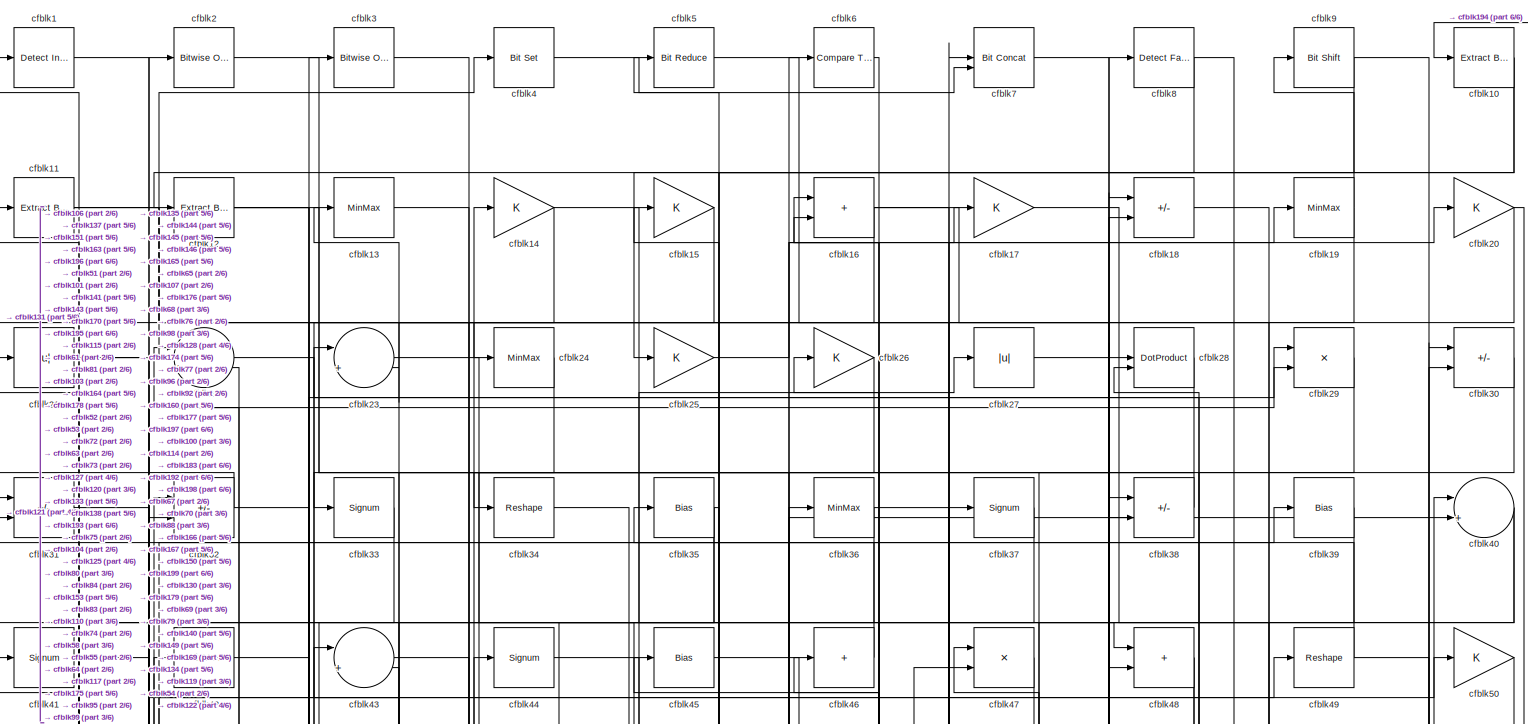
[diagram: root canvas - part 1/6, full width, top band]
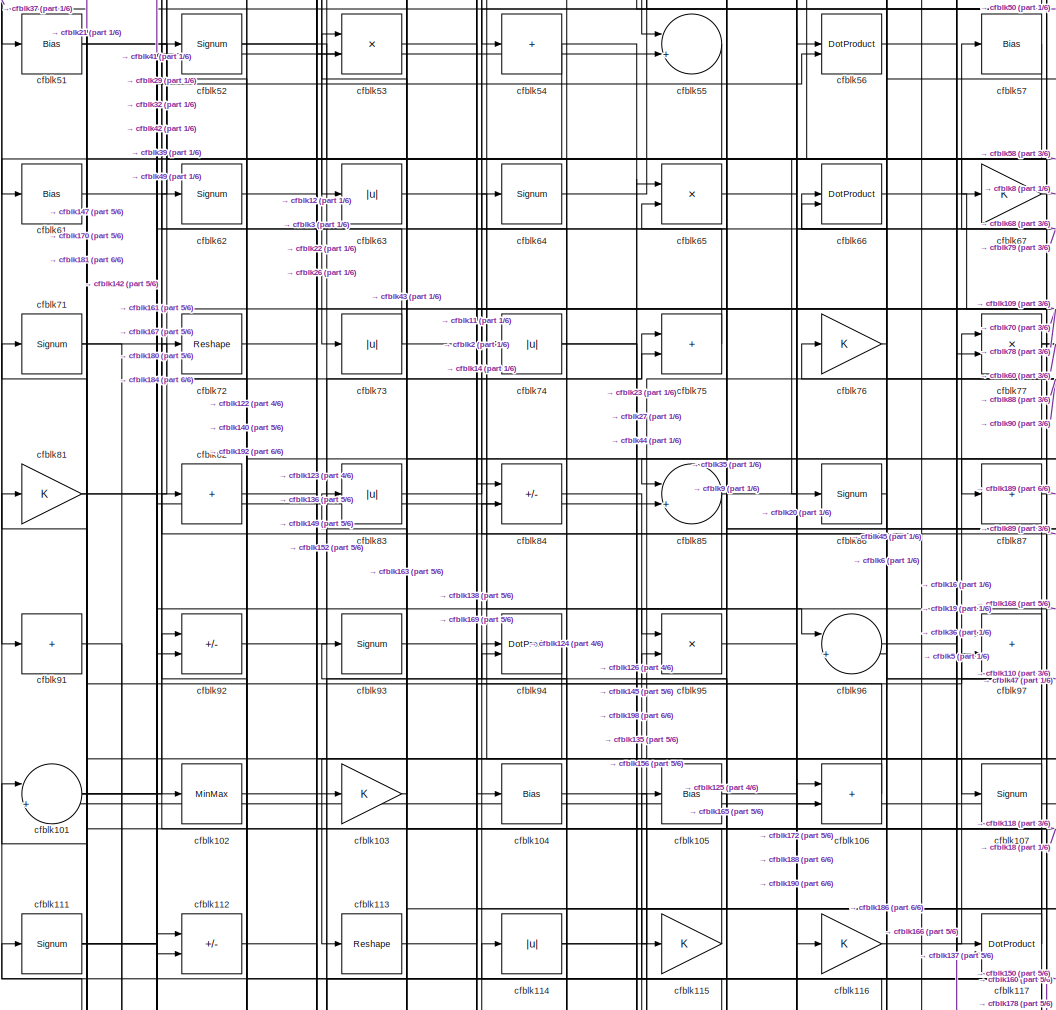
[diagram: root canvas - part 2/6, central region]
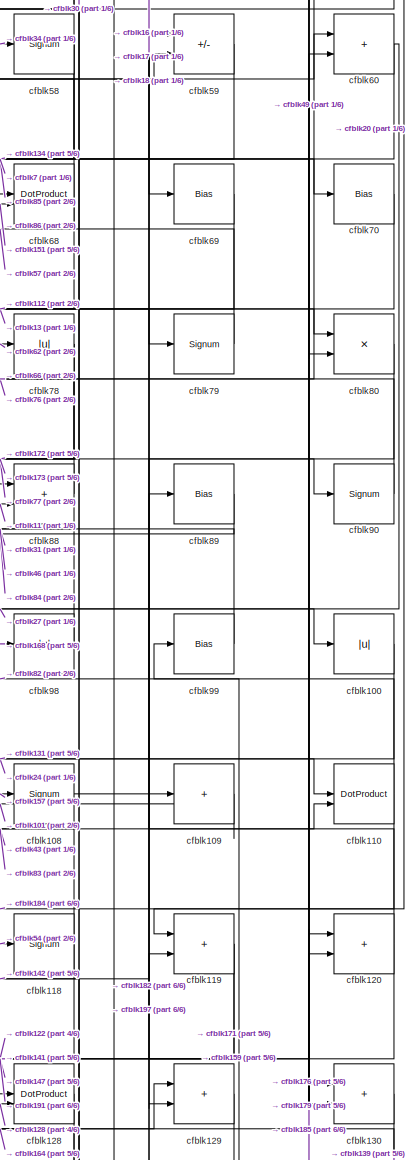
[diagram: root canvas - part 3/6, middle right region]
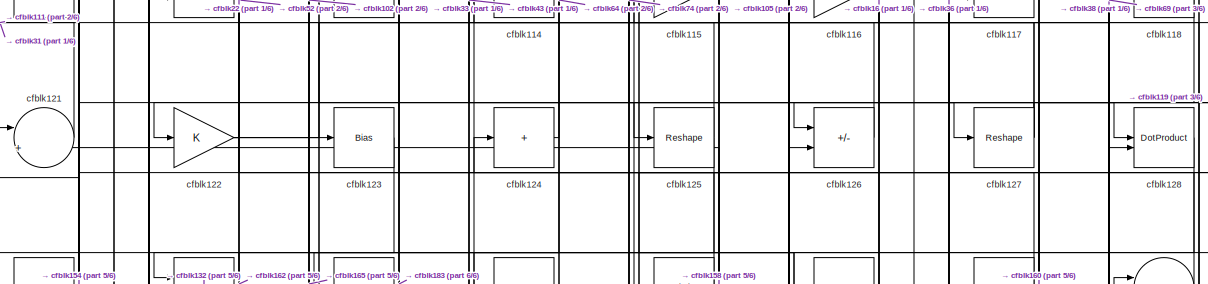
[diagram: root canvas - part 4/6, full width, middle band]
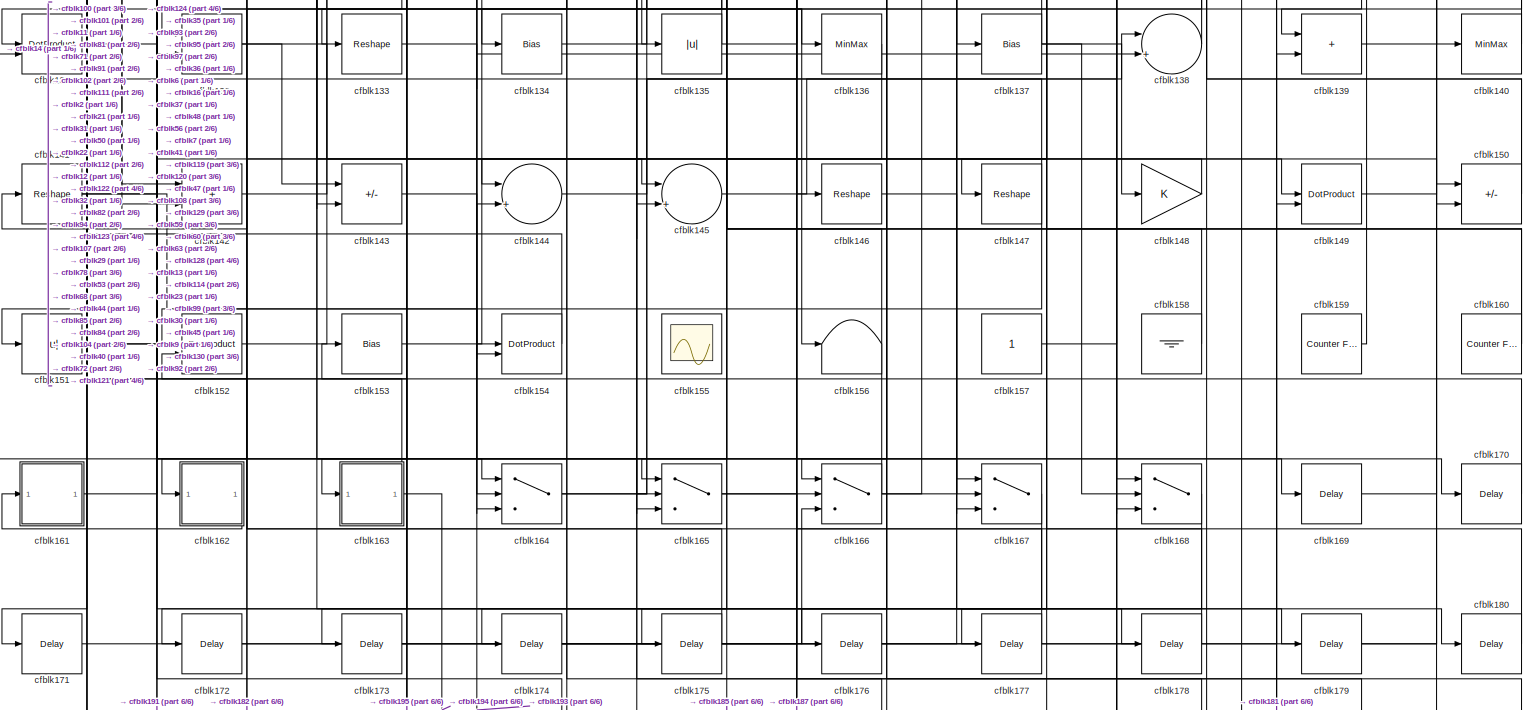
[diagram: root canvas - part 5/6, full width, bottom band]
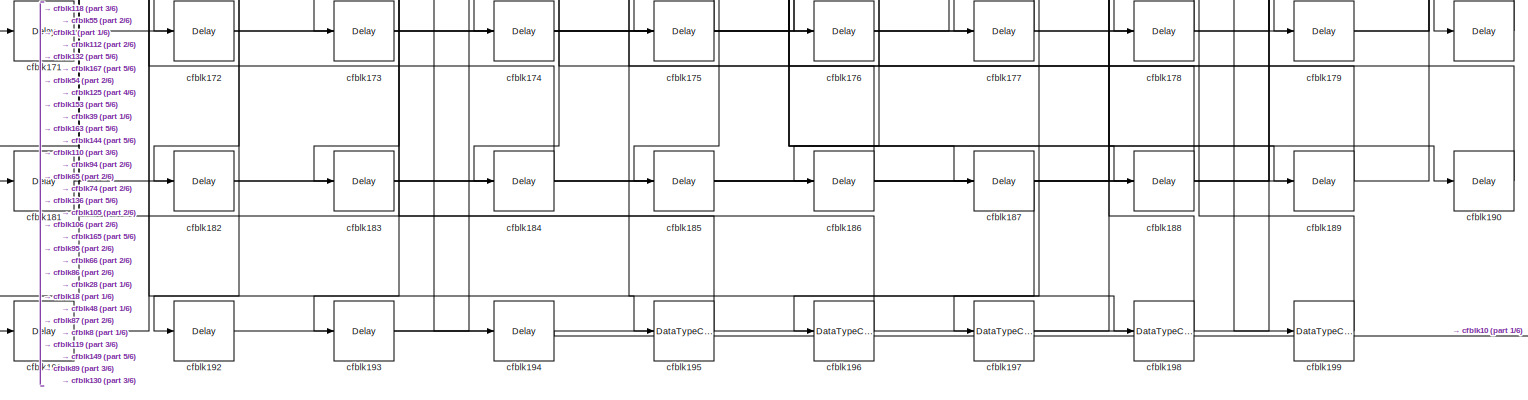
[diagram: root canvas - part 6/6, full width, bottom band]
MODEL slx_583c349c6bb7
KIND model
CONFIG AbsTol = auto
CONFIG EnableMultiTasking = off
CONFIG FixedStep = auto
CONFIG MaxStep = auto
CONFIG MinStep = auto
CONFIG RelTol = 1e-3
CONFIG SampleTimeConstraint = Unconstrained
CONFIG SolverName = VariableStepAuto
CONFIG StartTime = 0.0
CONFIG StopTime = 10.0
BLOCK [Reference] cfblk1  REF=simulink/Logic and Bit
Operations/Detect
Increase
  LibrarySourceBlock = hdlsllib/Logic and Bit\nOperations/Detect\nIncrease
  SourceBlock = simulink/Logic and Bit\nOperations/Detect\nIncrease
  SourceType = Detect Increase
BLOCK [Reference] cfblk10  REF=simulink/Logic and Bit
Operations/Extract Bits
  LibrarySourceBlock = hdlsllib/Logic and Bit\nOperations/Extract Bits
  SourceBlock = simulink/Logic and Bit\nOperations/Extract Bits
  SourceType = Extract Bits
BLOCK [Abs] cfblk100
  SaturateOnIntegerOverflow = off
BLOCK [Sum] cfblk101
  Inputs = |++
BLOCK [MinMax] cfblk102
BLOCK [Gain] cfblk103
BLOCK [Bias] cfblk104
  Bias = 0.0
  SaturateOnIntegerOverflow = off
BLOCK [Bias] cfblk105
  Bias = 0.0
  SaturateOnIntegerOverflow = off
BLOCK [Sum] cfblk106
  IconShape = rectangular
BLOCK [Signum] cfblk107
BLOCK [Signum] cfblk108
BLOCK [Sum] cfblk109
  IconShape = rectangular
  Inputs = +
BLOCK [Reference] cfblk11  REF=simulink/Logic and Bit
Operations/Extract Bits
  LibrarySourceBlock = hdlsllib/Logic and Bit\nOperations/Extract Bits
  SourceBlock = simulink/Logic and Bit\nOperations/Extract Bits
  SourceType = Extract Bits
BLOCK [DotProduct] cfblk110
  OutDataTypeStr = Inherit: Inherit via internal rule
BLOCK [Signum] cfblk111
BLOCK [Sum] cfblk112
  IconShape = rectangular
  Inputs = +-
BLOCK [Reshape] cfblk113
BLOCK [Abs] cfblk114
  SaturateOnIntegerOverflow = off
BLOCK [Gain] cfblk115
BLOCK [Gain] cfblk116
BLOCK [DotProduct] cfblk117
  OutDataTypeStr = Inherit: Inherit via internal rule
BLOCK [Signum] cfblk118
BLOCK [Sum] cfblk119
  IconShape = rectangular
BLOCK [Reference] cfblk12  REF=simulink/Logic and Bit
Operations/Extract Bits
  LibrarySourceBlock = hdlsllib/Logic and Bit\nOperations/Extract Bits
  SourceBlock = simulink/Logic and Bit\nOperations/Extract Bits
  SourceType = Extract Bits
BLOCK [Sum] cfblk120
  IconShape = rectangular
BLOCK [Sum] cfblk121
  Inputs = |++
BLOCK [Gain] cfblk122
BLOCK [Bias] cfblk123
  Bias = 0.0
  SaturateOnIntegerOverflow = off
BLOCK [Sum] cfblk124
  IconShape = rectangular
  Inputs = +
BLOCK [Reshape] cfblk125
BLOCK [Sum] cfblk126
  IconShape = rectangular
  Inputs = +-
BLOCK [Reshape] cfblk127
BLOCK [DotProduct] cfblk128
  OutDataTypeStr = Inherit: Inherit via internal rule
BLOCK [Sum] cfblk129
  IconShape = rectangular
BLOCK [MinMax] cfblk13
BLOCK [Sum] cfblk130
  IconShape = rectangular
BLOCK [DotProduct] cfblk131
  OutDataTypeStr = Inherit: Inherit via internal rule
BLOCK [Sum] cfblk132
  IconShape = rectangular
BLOCK [Reshape] cfblk133
BLOCK [Bias] cfblk134
  Bias = 0.0
  SaturateOnIntegerOverflow = off
BLOCK [Abs] cfblk135
  SaturateOnIntegerOverflow = off
BLOCK [MinMax] cfblk136
BLOCK [Bias] cfblk137
  Bias = 0.0
  SaturateOnIntegerOverflow = off
BLOCK [Sum] cfblk138
  Inputs = |++
BLOCK [Sum] cfblk139
  IconShape = rectangular
BLOCK [Gain] cfblk14
BLOCK [MinMax] cfblk140
BLOCK [Reshape] cfblk141
BLOCK [Sum] cfblk142
  IconShape = rectangular
BLOCK [Sum] cfblk143
  IconShape = rectangular
  Inputs = +-
BLOCK [Sum] cfblk144
  Inputs = |++
BLOCK [Sum] cfblk145
  Inputs = |++
BLOCK [Reshape] cfblk146
BLOCK [Reshape] cfblk147
BLOCK [Gain] cfblk148
BLOCK [DotProduct] cfblk149
  OutDataTypeStr = Inherit: Inherit via internal rule
BLOCK [Gain] cfblk15
BLOCK [Sum] cfblk150
  IconShape = rectangular
  Inputs = +-
BLOCK [Abs] cfblk151
  SaturateOnIntegerOverflow = off
BLOCK [DotProduct] cfblk152
  OutDataTypeStr = Inherit: Inherit via internal rule
BLOCK [Bias] cfblk153
  Bias = 0.0
  SaturateOnIntegerOverflow = off
BLOCK [DotProduct] cfblk154
  OutDataTypeStr = Inherit: Inherit via internal rule
BLOCK [Scope] cfblk155
  Floating = on
  NumInputPorts = 1
  ScopeSpecificationString = Simulink.scopes.TimeScopeBlockCfg('CurrentConfiguration', extmgr.ConfigurationSet(extmgr.Configuration('Core','General UI',true,'FigureColor',[0.156862745098039 0.156862745098039 0.156862745098039]),extmgr.Configuration('Core','Source UI',true),extmgr.Configuration('Sources','WiredSimulink',true,'DataLoggingVariableName','ScopeData1','DataLoggingSaveFormat','StructureWithTime','DataLoggingLimitDat...<+2713ch>
BLOCK [Terminator] cfblk156
BLOCK [Constant] cfblk157
  SampleTime = -1
BLOCK [Ground] cfblk158
BLOCK [Reference] cfblk159  REF=hdlsllib/Sources/Counter
Free-Running
  SourceBlock = hdlsllib/Sources/Counter\nFree-Running
  SourceType = Counter Free-Running
BLOCK [Sum] cfblk16
  IconShape = rectangular
BLOCK [Reference] cfblk160  REF=hdlsllib/Sources/Counter
Free-Running
  SourceBlock = hdlsllib/Sources/Counter\nFree-Running
  SourceType = Counter Free-Running
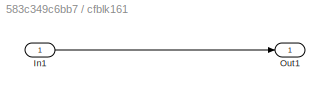
BLOCK [SubSystem] cfblk161
  LibrarySourceBlock = hdlsllib/Ports &\nSubsystems/Subsystem
BLOCK [Inport] cfblk161/In1
BLOCK [Outport] cfblk161/Out1
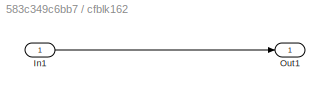
BLOCK [SubSystem] cfblk162
  LibrarySourceBlock = hdlsllib/Ports &\nSubsystems/Subsystem
BLOCK [Inport] cfblk162/In1
BLOCK [Outport] cfblk162/Out1
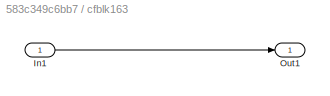
BLOCK [SubSystem] cfblk163
  LibrarySourceBlock = hdlsllib/Ports &\nSubsystems/Subsystem
BLOCK [Inport] cfblk163/In1
BLOCK [Outport] cfblk163/Out1
BLOCK [Switch] cfblk164
  InputSameDT = off
  SaturateOnIntegerOverflow = off
BLOCK [Switch] cfblk165
  InputSameDT = off
  SaturateOnIntegerOverflow = off
BLOCK [Switch] cfblk166
  InputSameDT = off
  SaturateOnIntegerOverflow = off
BLOCK [Switch] cfblk167
  InputSameDT = off
  SaturateOnIntegerOverflow = off
BLOCK [Switch] cfblk168
  InputSameDT = off
  SaturateOnIntegerOverflow = off
BLOCK [Delay] cfblk169
  InputPortMap = u0
  SampleTime = 1
BLOCK [Gain] cfblk17
BLOCK [Delay] cfblk170
  InputPortMap = u0
  SampleTime = 1
BLOCK [Delay] cfblk171
  InputPortMap = u0
  SampleTime = 1
BLOCK [Delay] cfblk172
  InputPortMap = u0
  SampleTime = 1
BLOCK [Delay] cfblk173
  InputPortMap = u0
  SampleTime = 1
BLOCK [Delay] cfblk174
  InputPortMap = u0
  SampleTime = 1
BLOCK [Delay] cfblk175
  InputPortMap = u0
  SampleTime = 1
BLOCK [Delay] cfblk176
  InputPortMap = u0
  SampleTime = 1
BLOCK [Delay] cfblk177
  InputPortMap = u0
  SampleTime = 1
BLOCK [Delay] cfblk178
  InputPortMap = u0
  SampleTime = 1
BLOCK [Delay] cfblk179
  InputPortMap = u0
  SampleTime = 1
BLOCK [Sum] cfblk18
  IconShape = rectangular
  Inputs = +-
BLOCK [Delay] cfblk180
  InputPortMap = u0
  SampleTime = 1
BLOCK [Delay] cfblk181
  InputPortMap = u0
  SampleTime = 1
BLOCK [Delay] cfblk182
  InputPortMap = u0
  SampleTime = 1
BLOCK [Delay] cfblk183
  InputPortMap = u0
  SampleTime = 1
BLOCK [Delay] cfblk184
  InputPortMap = u0
  SampleTime = 1
BLOCK [Delay] cfblk185
  InputPortMap = u0
  SampleTime = 1
BLOCK [Delay] cfblk186
  InputPortMap = u0
  SampleTime = 1
BLOCK [Delay] cfblk187
  InputPortMap = u0
  SampleTime = 1
BLOCK [Delay] cfblk188
  InputPortMap = u0
  SampleTime = 1
BLOCK [Delay] cfblk189
  InputPortMap = u0
  SampleTime = 1
BLOCK [MinMax] cfblk19
BLOCK [Delay] cfblk190
  InputPortMap = u0
  SampleTime = 1
BLOCK [Delay] cfblk191
  InputPortMap = u0
  SampleTime = 1
BLOCK [Delay] cfblk192
  InputPortMap = u0
  SampleTime = 1
BLOCK [Delay] cfblk193
  InputPortMap = u0
  SampleTime = 1
BLOCK [Delay] cfblk194
  InputPortMap = u0
  SampleTime = 1
BLOCK [DataTypeConversion] cfblk195
  OutDataTypeStr = uint8
  RndMeth = Floor
  SaturateOnIntegerOverflow = off
BLOCK [DataTypeConversion] cfblk196
  OutDataTypeStr = uint8
  RndMeth = Floor
  SaturateOnIntegerOverflow = off
BLOCK [DataTypeConversion] cfblk197
  OutDataTypeStr = uint8
  RndMeth = Floor
  SaturateOnIntegerOverflow = off
BLOCK [DataTypeConversion] cfblk198
  OutDataTypeStr = uint8
  RndMeth = Floor
  SaturateOnIntegerOverflow = off
BLOCK [DataTypeConversion] cfblk199
  OutDataTypeStr = uint8
  RndMeth = Floor
  SaturateOnIntegerOverflow = off
BLOCK [Reference] cfblk2  REF=simulink/Logic and Bit
Operations/Bitwise
Operator
  LibrarySourceBlock = hdlsllib/Logic and Bit\nOperations/Bitwise\nOperator
  SourceBlock = simulink/Logic and Bit\nOperations/Bitwise\nOperator
  SourceType = Bitwise Operator
BLOCK [Gain] cfblk20
BLOCK [Abs] cfblk21
  SaturateOnIntegerOverflow = off
BLOCK [Sum] cfblk22
  Inputs = |++
BLOCK [Sum] cfblk23
  Inputs = |++
BLOCK [MinMax] cfblk24
BLOCK [Gain] cfblk25
BLOCK [Gain] cfblk26
BLOCK [Abs] cfblk27
  SaturateOnIntegerOverflow = off
BLOCK [DotProduct] cfblk28
  OutDataTypeStr = Inherit: Inherit via internal rule
BLOCK [Product] cfblk29
  Inputs = */
  RndMeth = Zero
  SaturateOnIntegerOverflow = on
BLOCK [Reference] cfblk3  REF=simulink/Logic and Bit
Operations/Bitwise
Operator
  LibrarySourceBlock = hdlsllib/Logic and Bit\nOperations/Bitwise\nOperator
  SourceBlock = simulink/Logic and Bit\nOperations/Bitwise\nOperator
  SourceType = Bitwise Operator
BLOCK [Sum] cfblk30
  IconShape = rectangular
  Inputs = +-
BLOCK [Sum] cfblk31
  IconShape = rectangular
  Inputs = +-
BLOCK [Sum] cfblk32
  IconShape = rectangular
  Inputs = +-
BLOCK [Signum] cfblk33
BLOCK [Reshape] cfblk34
BLOCK [Bias] cfblk35
  Bias = 0.0
  SaturateOnIntegerOverflow = off
BLOCK [MinMax] cfblk36
BLOCK [Signum] cfblk37
BLOCK [Sum] cfblk38
  IconShape = rectangular
  Inputs = +-
BLOCK [Bias] cfblk39
  Bias = 0.0
  SaturateOnIntegerOverflow = off
BLOCK [Reference] cfblk4  REF=simulink/Logic and Bit
Operations/Bit Set
  LibrarySourceBlock = hdlsllib/Logic and Bit\nOperations/Bit Set
  SourceBlock = simulink/Logic and Bit\nOperations/Bit Set
  SourceType = Bit Set
BLOCK [Sum] cfblk40
  Inputs = |++
BLOCK [Signum] cfblk41
BLOCK [MinMax] cfblk42
BLOCK [Sum] cfblk43
  Inputs = |++
BLOCK [Signum] cfblk44
BLOCK [Bias] cfblk45
  Bias = 0.0
  SaturateOnIntegerOverflow = off
BLOCK [Sum] cfblk46
  IconShape = rectangular
  Inputs = +
BLOCK [Product] cfblk47
  Inputs = */
  RndMeth = Zero
  SaturateOnIntegerOverflow = on
BLOCK [Sum] cfblk48
  IconShape = rectangular
BLOCK [Reshape] cfblk49
BLOCK [Reference] cfblk5  REF=hdlsllib/Logic and Bit
Operations/Bit Reduce
  SourceBlock = hdlsllib/Logic and Bit\nOperations/Bit Reduce
  SourceType = Bit Reduce
BLOCK [Gain] cfblk50
BLOCK [Bias] cfblk51
  Bias = 0.0
  SaturateOnIntegerOverflow = off
BLOCK [Signum] cfblk52
BLOCK [Product] cfblk53
  Inputs = */
  RndMeth = Zero
  SaturateOnIntegerOverflow = on
BLOCK [Sum] cfblk54
  IconShape = rectangular
  Inputs = +
BLOCK [Sum] cfblk55
  Inputs = |++
BLOCK [DotProduct] cfblk56
  OutDataTypeStr = Inherit: Inherit via internal rule
BLOCK [Bias] cfblk57
  Bias = 0.0
  SaturateOnIntegerOverflow = off
BLOCK [Signum] cfblk58
BLOCK [Sum] cfblk59
  IconShape = rectangular
  Inputs = +-
BLOCK [Reference] cfblk6  REF=hdlsllib/Logic and Bit
Operations/Compare
To Zero
  SourceBlock = hdlsllib/Logic and Bit\nOperations/Compare\nTo Zero
  SourceType = Compare To Zero
BLOCK [Sum] cfblk60
  IconShape = rectangular
BLOCK [Bias] cfblk61
  Bias = 0.0
  SaturateOnIntegerOverflow = off
BLOCK [Signum] cfblk62
BLOCK [Abs] cfblk63
  SaturateOnIntegerOverflow = off
BLOCK [Signum] cfblk64
BLOCK [Product] cfblk65
  Inputs = */
  RndMeth = Zero
  SaturateOnIntegerOverflow = on
BLOCK [DotProduct] cfblk66
  OutDataTypeStr = Inherit: Inherit via internal rule
BLOCK [Gain] cfblk67
BLOCK [DotProduct] cfblk68
  OutDataTypeStr = Inherit: Inherit via internal rule
BLOCK [Bias] cfblk69
  Bias = 0.0
  SaturateOnIntegerOverflow = off
BLOCK [Reference] cfblk7  REF=hdlsllib/Logic and Bit
Operations/Bit Concat
  SourceBlock = hdlsllib/Logic and Bit\nOperations/Bit Concat
  SourceType = Bit Concat
BLOCK [Bias] cfblk70
  Bias = 0.0
  SaturateOnIntegerOverflow = off
BLOCK [Signum] cfblk71
BLOCK [Reshape] cfblk72
BLOCK [Abs] cfblk73
  SaturateOnIntegerOverflow = off
BLOCK [Abs] cfblk74
  SaturateOnIntegerOverflow = off
BLOCK [Sum] cfblk75
  IconShape = rectangular
BLOCK [Gain] cfblk76
BLOCK [Product] cfblk77
  Inputs = */
  RndMeth = Zero
  SaturateOnIntegerOverflow = on
BLOCK [Abs] cfblk78
  SaturateOnIntegerOverflow = off
BLOCK [Signum] cfblk79
BLOCK [Reference] cfblk8  REF=hdlsllib/Logic and Bit
Operations/Detect Fall
Nonpositive
  SourceBlock = hdlsllib/Logic and Bit\nOperations/Detect Fall\nNonpositive
  SourceType = Detect Fall Nonpositive
BLOCK [Product] cfblk80
  Inputs = */
  RndMeth = Zero
  SaturateOnIntegerOverflow = on
BLOCK [Gain] cfblk81
BLOCK [Sum] cfblk82
  IconShape = rectangular
  Inputs = +
BLOCK [Abs] cfblk83
  SaturateOnIntegerOverflow = off
BLOCK [Sum] cfblk84
  IconShape = rectangular
  Inputs = +-
BLOCK [Sum] cfblk85
  Inputs = |++
BLOCK [Signum] cfblk86
BLOCK [Sum] cfblk87
  IconShape = rectangular
  Inputs = +
BLOCK [Sum] cfblk88
  IconShape = rectangular
BLOCK [Bias] cfblk89
  Bias = 0.0
  SaturateOnIntegerOverflow = off
BLOCK [Reference] cfblk9  REF=hdlsllib/Logic and Bit
Operations/Bit Shift
  SourceBlock = hdlsllib/Logic and Bit\nOperations/Bit Shift
  SourceType = Bit Shift
BLOCK [Signum] cfblk90
BLOCK [Sum] cfblk91
  IconShape = rectangular
  Inputs = +
BLOCK [Sum] cfblk92
  IconShape = rectangular
  Inputs = +-
BLOCK [Signum] cfblk93
BLOCK [DotProduct] cfblk94
  OutDataTypeStr = Inherit: Inherit via internal rule
BLOCK [Product] cfblk95
  Inputs = */
  RndMeth = Zero
  SaturateOnIntegerOverflow = on
BLOCK [Sum] cfblk96
  Inputs = |++
BLOCK [Sum] cfblk97
  IconShape = rectangular
BLOCK [Abs] cfblk98
  SaturateOnIntegerOverflow = off
BLOCK [Bias] cfblk99
  Bias = 0.0
  SaturateOnIntegerOverflow = off
LINE cfblk100:1 -> cfblk131:1
NET cfblk101:1 -> cfblk29:2, cfblk42:1, cfblk56:2
LINE cfblk102:1 -> cfblk123:1
LINE cfblk103:1 -> cfblk53:1
LINE cfblk104:1 -> cfblk156:1
LINE cfblk105:1 -> cfblk188:1
LINE cfblk106:1 -> cfblk21:1
NET cfblk107:1 -> cfblk163:1, cfblk45:1
LINE cfblk108:1 -> cfblk110:2
LINE cfblk109:1 -> cfblk101:2
NET cfblk10:1 -> cfblk12:1, cfblk25:1
NET cfblk110:1 -> cfblk184:1, cfblk82:1
NET cfblk111:1 -> cfblk167:3, cfblk180:1, cfblk55:2
LINE cfblk112:1 -> cfblk149:1
LINE cfblk113:1 -> cfblk97:1
NET cfblk114:1 -> cfblk145:2, cfblk18:1
LINE cfblk115:1 -> cfblk32:1
LINE cfblk116:1 -> cfblk77:1
NET cfblk117:1 -> cfblk5:1, cfblk71:1
NET cfblk118:1 -> cfblk191:1, cfblk83:1
NET cfblk119:1 -> cfblk122:1, cfblk141:1
NET cfblk11:1 -> cfblk104:1, cfblk88:2
NET cfblk120:1 -> cfblk147:1, cfblk43:2
LINE cfblk121:1 -> cfblk31:2
NET cfblk122:1 -> cfblk165:2, cfblk38:1, cfblk52:1
LINE cfblk123:1 -> cfblk132:1
LINE cfblk124:1 -> cfblk64:1
NET cfblk125:1 -> cfblk111:1, cfblk183:1
LINE cfblk126:1 -> cfblk105:1
NET cfblk127:1 -> cfblk126:1, cfblk16:2, cfblk22:2
LINE cfblk128:1 -> cfblk162:1
LINE cfblk129:1 -> cfblk171:1
NET cfblk12:1 -> cfblk107:1, cfblk145:1, cfblk146:1
LINE cfblk130:1 -> cfblk139:1
LINE cfblk131:1 -> cfblk2:1
NET cfblk132:1 -> cfblk143:1, cfblk150:2
LINE cfblk133:1 -> cfblk164:2
LINE cfblk134:1 -> cfblk40:1
NET cfblk135:1 -> cfblk6:1, cfblk72:1
LINE cfblk136:1 -> cfblk185:1
NET cfblk137:1 -> cfblk148:1, cfblk168:2, cfblk41:1
LINE cfblk138:1 -> cfblk13:1
LINE cfblk139:1 -> cfblk120:1
LINE cfblk13:1 -> cfblk80:1
LINE cfblk140:1 -> cfblk92:1
NET cfblk141:1 -> cfblk154:2, cfblk50:1
LINE cfblk142:1 -> cfblk59:1
LINE cfblk143:1 -> cfblk154:1
LINE cfblk144:1 -> cfblk36:1
LINE cfblk145:1 -> cfblk138:1
LINE cfblk146:1 -> cfblk167:1
NET cfblk147:1 -> cfblk152:1, cfblk81:1
LINE cfblk148:1 -> cfblk144:1
LINE cfblk149:1 -> cfblk30:2
NET cfblk14:1 -> cfblk131:2, cfblk48:1
NET cfblk150:1 -> cfblk114:1, cfblk23:1
NET cfblk151:1 -> cfblk32:2, cfblk68:2
LINE cfblk152:1 -> cfblk94:1
LINE cfblk153:1 -> cfblk44:1
LINE cfblk154:1 -> cfblk121:1
LINE cfblk157:1 -> cfblk108:1
LINE cfblk158:1 -> cfblk124:1
LINE cfblk159:1 -> cfblk99:1
LINE cfblk15:1 -> cfblk33:1
NET cfblk160:1 -> cfblk121:2, cfblk47:1, cfblk93:1
LINE cfblk161/In1:1 -> cfblk161/Out1:1
LINE cfblk161:1 -> cfblk102:1
LINE cfblk162/In1:1 -> cfblk162/Out1:1
LINE cfblk162:1 -> cfblk161:1
LINE cfblk163/In1:1 -> cfblk163/Out1:1
NET cfblk163:1 -> cfblk11:1, cfblk194:1
NET cfblk164:1 -> cfblk129:1, cfblk59:2
NET cfblk165:1 -> cfblk187:1, cfblk40:2
NET cfblk166:1 -> cfblk37:1, cfblk47:2, cfblk95:2
LINE cfblk167:1 -> cfblk182:1
LINE cfblk168:1 -> cfblk174:1
LINE cfblk169:1 -> cfblk30:1
NET cfblk16:1 -> cfblk179:1, cfblk53:2, cfblk79:1
LINE cfblk170:1 -> cfblk101:1
LINE cfblk171:1 -> cfblk139:2
LINE cfblk172:1 -> cfblk56:1
LINE cfblk173:1 -> cfblk166:3
LINE cfblk174:1 -> cfblk7:1
LINE cfblk175:1 -> cfblk22:1
LINE cfblk176:1 -> cfblk120:2
LINE cfblk177:1 -> cfblk152:2
LINE cfblk178:1 -> cfblk97:2
LINE cfblk179:1 -> cfblk60:2
LINE cfblk17:1 -> cfblk69:1
LINE cfblk180:1 -> cfblk166:2
LINE cfblk181:1 -> cfblk149:2
LINE cfblk182:1 -> cfblk119:2
LINE cfblk183:1 -> cfblk48:2
LINE cfblk184:1 -> cfblk112:1
LINE cfblk185:1 -> cfblk130:1
LINE cfblk186:1 -> cfblk106:1
LINE cfblk187:1 -> cfblk196:1
LINE cfblk188:1 -> cfblk66:2
LINE cfblk189:1 -> cfblk65:1
LINE cfblk18:1 -> cfblk130:2
LINE cfblk190:1 -> cfblk94:2
LINE cfblk191:1 -> cfblk132:2
LINE cfblk192:1 -> cfblk18:2
LINE cfblk193:1 -> cfblk144:2
LINE cfblk194:1 -> cfblk10:1
LINE cfblk195:1 -> cfblk153:1
LINE cfblk196:1 -> cfblk1:1
LINE cfblk197:1 -> cfblk89:1
LINE cfblk198:1 -> cfblk28:1
LINE cfblk199:1 -> cfblk28:2
NET cfblk19:1 -> cfblk24:1, cfblk9:1
LINE cfblk1:1 -> cfblk195:1
NET cfblk20:1 -> cfblk119:1, cfblk23:2
NET cfblk21:1 -> cfblk143:2, cfblk4:1
LINE cfblk22:1 -> cfblk73:1
LINE cfblk23:1 -> cfblk55:1
LINE cfblk24:1 -> cfblk110:1
LINE cfblk25:1 -> cfblk17:1
LINE cfblk26:1 -> cfblk63:1
LINE cfblk27:1 -> cfblk100:1
LINE cfblk28:1 -> cfblk197:1
LINE cfblk29:1 -> cfblk133:1
LINE cfblk2:1 -> cfblk84:1
LINE cfblk30:1 -> cfblk88:1
LINE cfblk31:1 -> cfblk170:1
NET cfblk32:1 -> cfblk164:1, cfblk178:1
LINE cfblk33:1 -> cfblk127:1
LINE cfblk34:1 -> cfblk58:1
NET cfblk35:1 -> cfblk151:1, cfblk175:1, cfblk74:1
NET cfblk36:1 -> cfblk128:1, cfblk51:1
LINE cfblk37:1 -> cfblk61:1
LINE cfblk38:1 -> cfblk34:1
LINE cfblk39:1 -> cfblk193:1
LINE cfblk3:1 -> cfblk38:2
NET cfblk40:1 -> cfblk176:1, cfblk177:1
LINE cfblk41:1 -> cfblk96:1
LINE cfblk42:1 -> cfblk103:1
LINE cfblk43:1 -> cfblk125:1
LINE cfblk44:1 -> cfblk106:2
LINE cfblk45:1 -> cfblk150:1
LINE cfblk46:1 -> cfblk35:1
LINE cfblk47:1 -> cfblk92:2
NET cfblk48:1 -> cfblk166:1, cfblk167:2
NET cfblk49:1 -> cfblk15:1, cfblk80:2
LINE cfblk4:1 -> cfblk7:2
LINE cfblk50:1 -> cfblk54:1
NET cfblk51:1 -> cfblk116:1, cfblk117:1
NET cfblk52:1 -> cfblk29:1, cfblk67:1
LINE cfblk53:1 -> cfblk169:1
NET cfblk54:1 -> cfblk118:1, cfblk192:1
LINE cfblk55:1 -> cfblk181:1
LINE cfblk56:1 -> cfblk137:1
LINE cfblk57:1 -> cfblk91:1
NET cfblk58:1 -> cfblk85:1, cfblk86:1
LINE cfblk59:1 -> cfblk134:1
LINE cfblk5:1 -> cfblk77:2
NET cfblk60:1 -> cfblk168:3, cfblk98:1
LINE cfblk61:1 -> cfblk49:1
LINE cfblk62:1 -> cfblk78:1
LINE cfblk63:1 -> cfblk168:1
LINE cfblk64:1 -> cfblk27:1
LINE cfblk65:1 -> cfblk20:1
LINE cfblk66:1 -> cfblk109:1
LINE cfblk67:1 -> cfblk8:1
NET cfblk68:1 -> cfblk164:3, cfblk16:1
LINE cfblk69:1 -> cfblk128:2
LINE cfblk6:1 -> cfblk96:2
LINE cfblk70:1 -> cfblk112:2
NET cfblk71:1 -> cfblk142:2, cfblk75:2
LINE cfblk72:1 -> cfblk3:1
NET cfblk73:1 -> cfblk117:2, cfblk62:1
NET cfblk74:1 -> cfblk126:2, cfblk198:1
LINE cfblk75:1 -> cfblk43:1
LINE cfblk76:1 -> cfblk26:1
NET cfblk77:1 -> cfblk60:1, cfblk87:1, cfblk90:1
NET cfblk78:1 -> cfblk172:1, cfblk173:1
LINE cfblk79:1 -> cfblk57:1
LINE cfblk7:1 -> cfblk70:1
LINE cfblk80:1 -> cfblk129:2
NET cfblk81:1 -> cfblk39:1, cfblk85:2
LINE cfblk82:1 -> cfblk136:1
LINE cfblk83:1 -> cfblk14:1
LINE cfblk84:1 -> cfblk135:1
NET cfblk85:1 -> cfblk165:3, cfblk68:1
LINE cfblk86:1 -> cfblk186:1
LINE cfblk87:1 -> cfblk189:1
LINE cfblk88:1 -> cfblk66:1
LINE cfblk89:1 -> cfblk84:2
NET cfblk8:1 -> cfblk199:1, cfblk95:1
LINE cfblk90:1 -> cfblk76:1
LINE cfblk91:1 -> cfblk142:1
LINE cfblk92:1 -> cfblk75:1
LINE cfblk93:1 -> cfblk138:2
LINE cfblk94:1 -> cfblk113:1
LINE cfblk95:1 -> cfblk190:1
LINE cfblk96:1 -> cfblk19:1
NET cfblk97:1 -> cfblk165:1, cfblk65:2
LINE cfblk98:1 -> cfblk46:1
LINE cfblk99:1 -> cfblk31:1
NET cfblk9:1 -> cfblk115:1, cfblk140:1
note: NET lines group one-source signal fan-out (src -> all destinations, sorted); 1:1 wires keep LINE
